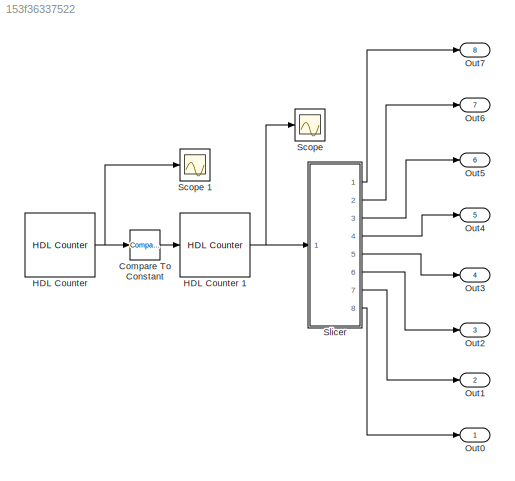
MODEL slx_153f36337522
KIND model
CONFIG AbsTol = auto
CONFIG EnableMultiTasking = off
CONFIG FixedStep = 1
CONFIG MaxStep = auto
CONFIG MinStep = auto
CONFIG RelTol = 1e-3
CONFIG SampleTimeConstraint = Unconstrained
CONFIG Solver = FixedStepDiscrete
CONFIG SolverName = FixedStepDiscrete
CONFIG StartTime = 0.0
CONFIG StopTime = 1000000
BLOCK [Reference] Compare To Constant  REF=simulink/Logic and Bit
Operations/Compare
To Constant
  Ports = [1, 1]
  SourceBlock = simulink/Logic and Bit\nOperations/Compare\nTo Constant
  SourceProductBaseCode = SL
  SourceProductName = Simulink
  SourceType = Compare To Constant
BLOCK [Reference] HDL Counter   REF=hdlsllib/Sources/HDL Counter
  Ports = [0, 1]
  SourceBlock = hdlsllib/Sources/HDL Counter
  SourceProductBaseCode = HD
  SourceProductName = HDL Coder
  SourceType = HDL Counter
BLOCK [Reference] HDL Counter 1  REF=hdlsllib/Sources/HDL Counter
  Ports = [1, 1]
  SourceBlock = hdlsllib/Sources/HDL Counter
  SourceProductBaseCode = HD
  SourceProductName = HDL Coder
  SourceType = HDL Counter
BLOCK [Outport] Out0
  IconDisplay = Port number
BLOCK [Outport] Out1
  IconDisplay = Port number
  Port = 2
BLOCK [Outport] Out2
  IconDisplay = Port number
  Port = 3
BLOCK [Outport] Out3
  IconDisplay = Port number
  Port = 4
BLOCK [Outport] Out4
  IconDisplay = Port number
  Port = 5
BLOCK [Outport] Out5
  IconDisplay = Port number
  Port = 6
BLOCK [Outport] Out6
  IconDisplay = Port number
  Port = 7
BLOCK [Outport] Out7
  IconDisplay = Port number
  Port = 8
BLOCK [Scope] Scope 
  Floating = off
  NumInputPorts = 1
  Ports = [1]
  ScopeSpecificationString = Simulink.scopes.TimeScopeBlockCfg('CurrentConfiguration', extmgr.ConfigurationSet(extmgr.Configuration('Core','General UI',true),extmgr.Configuration('Core','Source UI',true),extmgr.Configuration('Sources','WiredSimulink',true),extmgr.Configuration('Visuals','Time Domain',true,'SerializedDisplays',{struct('MinYLimReal','-0.5','MaxYLimReal','4.5','YLabelReal','','MinYLimMag','0.00000','MaxYLimMag',...<+1336ch>
BLOCK [Scope] Scope 1
  Floating = off
  NumInputPorts = 1
  Ports = [1]
  ScopeSpecificationString = Simulink.scopes.TimeScopeBlockCfg('CurrentConfiguration', extmgr.ConfigurationSet(extmgr.Configuration('Core','General UI',true),extmgr.Configuration('Core','Source UI',true),extmgr.Configuration('Sources','WiredSimulink',true,'DataLoggingVariableName','ScopeData1'),extmgr.Configuration('Visuals','Time Domain',true,'SerializedDisplays',{struct('MinYLimReal','-31250.00000','MaxYLimReal','281250.000...<+1448ch>
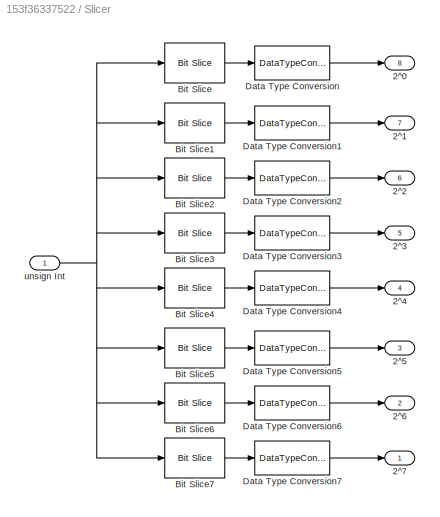
BLOCK [SubSystem] Slicer
  Ports = [1, 8]
  RequestExecContextInheritance = off
BLOCK [Outport] Slicer/2^0 
  IconDisplay = Port number
  Port = 8
BLOCK [Outport] Slicer/2^1
  IconDisplay = Port number
  Port = 7
BLOCK [Outport] Slicer/2^2
  IconDisplay = Port number
  Port = 6
BLOCK [Outport] Slicer/2^3
  IconDisplay = Port number
  Port = 5
BLOCK [Outport] Slicer/2^4
  IconDisplay = Port number
  Port = 4
BLOCK [Outport] Slicer/2^5
  IconDisplay = Port number
  Port = 3
BLOCK [Outport] Slicer/2^6
  IconDisplay = Port number
  Port = 2
BLOCK [Outport] Slicer/2^7
  IconDisplay = Port number
BLOCK [Reference] Slicer/Bit Slice  REF=hdlsllib/Logic and Bit
Operations/Bit Slice
  Ports = [1, 1]
  SourceBlock = hdlsllib/Logic and Bit\nOperations/Bit Slice
  SourceProductBaseCode = HD
  SourceProductName = HDL Coder
  SourceType = Bit Slice
BLOCK [Reference] Slicer/Bit Slice1  REF=hdlsllib/Logic and Bit
Operations/Bit Slice
  Ports = [1, 1]
  SourceBlock = hdlsllib/Logic and Bit\nOperations/Bit Slice
  SourceProductBaseCode = HD
  SourceProductName = HDL Coder
  SourceType = Bit Slice
BLOCK [Reference] Slicer/Bit Slice2  REF=hdlsllib/Logic and Bit
Operations/Bit Slice
  Ports = [1, 1]
  SourceBlock = hdlsllib/Logic and Bit\nOperations/Bit Slice
  SourceProductBaseCode = HD
  SourceProductName = HDL Coder
  SourceType = Bit Slice
BLOCK [Reference] Slicer/Bit Slice3  REF=hdlsllib/Logic and Bit
Operations/Bit Slice
  Ports = [1, 1]
  SourceBlock = hdlsllib/Logic and Bit\nOperations/Bit Slice
  SourceProductBaseCode = HD
  SourceProductName = HDL Coder
  SourceType = Bit Slice
BLOCK [Reference] Slicer/Bit Slice4  REF=hdlsllib/Logic and Bit
Operations/Bit Slice
  Ports = [1, 1]
  SourceBlock = hdlsllib/Logic and Bit\nOperations/Bit Slice
  SourceProductBaseCode = HD
  SourceProductName = HDL Coder
  SourceType = Bit Slice
BLOCK [Reference] Slicer/Bit Slice5  REF=hdlsllib/Logic and Bit
Operations/Bit Slice
  Ports = [1, 1]
  SourceBlock = hdlsllib/Logic and Bit\nOperations/Bit Slice
  SourceProductBaseCode = HD
  SourceProductName = HDL Coder
  SourceType = Bit Slice
BLOCK [Reference] Slicer/Bit Slice6  REF=hdlsllib/Logic and Bit
Operations/Bit Slice
  Ports = [1, 1]
  SourceBlock = hdlsllib/Logic and Bit\nOperations/Bit Slice
  SourceProductBaseCode = HD
  SourceProductName = HDL Coder
  SourceType = Bit Slice
BLOCK [Reference] Slicer/Bit Slice7  REF=hdlsllib/Logic and Bit
Operations/Bit Slice
  Ports = [1, 1]
  SourceBlock = hdlsllib/Logic and Bit\nOperations/Bit Slice
  SourceProductBaseCode = HD
  SourceProductName = HDL Coder
  SourceType = Bit Slice
BLOCK [DataTypeConversion] Slicer/Data Type Conversion
  OutDataTypeStr = boolean
  RndMeth = Floor
  SaturateOnIntegerOverflow = off
BLOCK [DataTypeConversion] Slicer/Data Type Conversion1
  OutDataTypeStr = boolean
  RndMeth = Floor
  SaturateOnIntegerOverflow = off
BLOCK [DataTypeConversion] Slicer/Data Type Conversion2
  OutDataTypeStr = boolean
  RndMeth = Floor
  SaturateOnIntegerOverflow = off
BLOCK [DataTypeConversion] Slicer/Data Type Conversion3
  OutDataTypeStr = boolean
  RndMeth = Floor
  SaturateOnIntegerOverflow = off
BLOCK [DataTypeConversion] Slicer/Data Type Conversion4
  OutDataTypeStr = boolean
  RndMeth = Floor
  SaturateOnIntegerOverflow = off
BLOCK [DataTypeConversion] Slicer/Data Type Conversion5
  OutDataTypeStr = boolean
  RndMeth = Floor
  SaturateOnIntegerOverflow = off
BLOCK [DataTypeConversion] Slicer/Data Type Conversion6
  OutDataTypeStr = boolean
  RndMeth = Floor
  SaturateOnIntegerOverflow = off
BLOCK [DataTypeConversion] Slicer/Data Type Conversion7
  OutDataTypeStr = boolean
  RndMeth = Floor
  SaturateOnIntegerOverflow = off
BLOCK [Inport] Slicer/unsign Int
  IconDisplay = Port number
  OutDataTypeStr = uint8
  SampleTime = 1
LINE Compare To Constant:1 -> HDL Counter 1:1
NET HDL Counter 1:1 -> Scope :1, Slicer:1
NET HDL Counter :1 -> Compare To Constant:1, Scope 1:1
LINE Slicer/Bit Slice1:1 -> Slicer/Data Type Conversion1:1
LINE Slicer/Bit Slice2:1 -> Slicer/Data Type Conversion2:1
LINE Slicer/Bit Slice3:1 -> Slicer/Data Type Conversion3:1
LINE Slicer/Bit Slice4:1 -> Slicer/Data Type Conversion4:1
LINE Slicer/Bit Slice5:1 -> Slicer/Data Type Conversion5:1
LINE Slicer/Bit Slice6:1 -> Slicer/Data Type Conversion6:1
LINE Slicer/Bit Slice7:1 -> Slicer/Data Type Conversion7:1
LINE Slicer/Bit Slice:1 -> Slicer/Data Type Conversion:1
LINE Slicer/Data Type Conversion1:1 -> Slicer/2^1:1
LINE Slicer/Data Type Conversion2:1 -> Slicer/2^2:1
LINE Slicer/Data Type Conversion3:1 -> Slicer/2^3:1
LINE Slicer/Data Type Conversion4:1 -> Slicer/2^4:1
LINE Slicer/Data Type Conversion5:1 -> Slicer/2^5:1
LINE Slicer/Data Type Conversion6:1 -> Slicer/2^6:1
LINE Slicer/Data Type Conversion7:1 -> Slicer/2^7:1
LINE Slicer/Data Type Conversion:1 -> Slicer/2^0 :1
NET Slicer/unsign Int:1 -> Slicer/Bit Slice1:1, Slicer/Bit Slice2:1, Slicer/Bit Slice3:1, Slicer/Bit Slice4:1, Slicer/Bit Slice5:1, Slicer/Bit Slice6:1, Slicer/Bit Slice7:1, Slicer/Bit Slice:1
LINE Slicer:1 -> Out7:1
LINE Slicer:2 -> Out6:1
LINE Slicer:3 -> Out5:1
LINE Slicer:4 -> Out4:1
LINE Slicer:5 -> Out3:1
LINE Slicer:6 -> Out2:1
LINE Slicer:7 -> Out1:1
LINE Slicer:8 -> Out0:1
note: NET lines group one-source signal fan-out (src -> all destinations, sorted); 1:1 wires keep LINE
